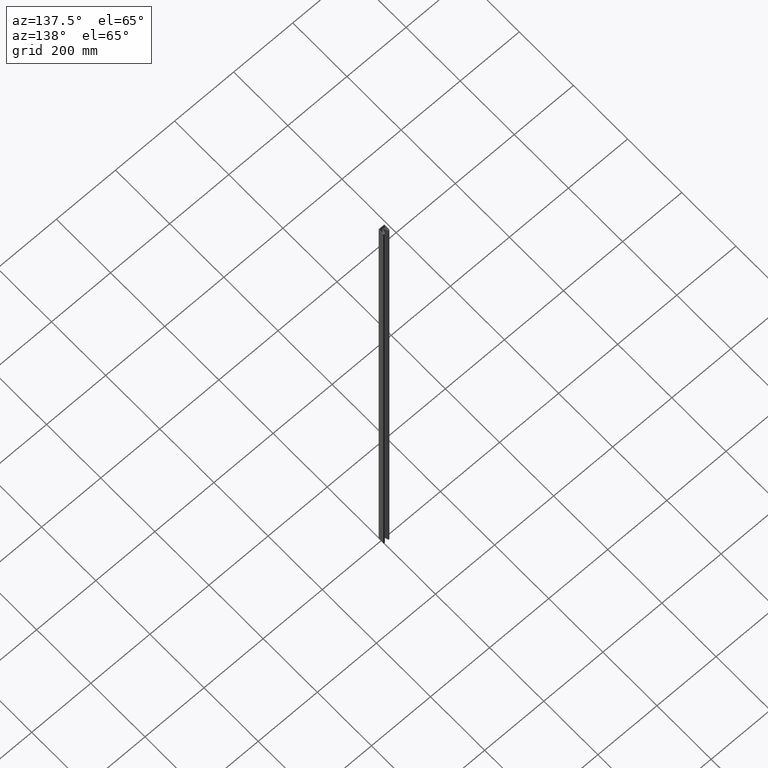
[diagram: clean part render]
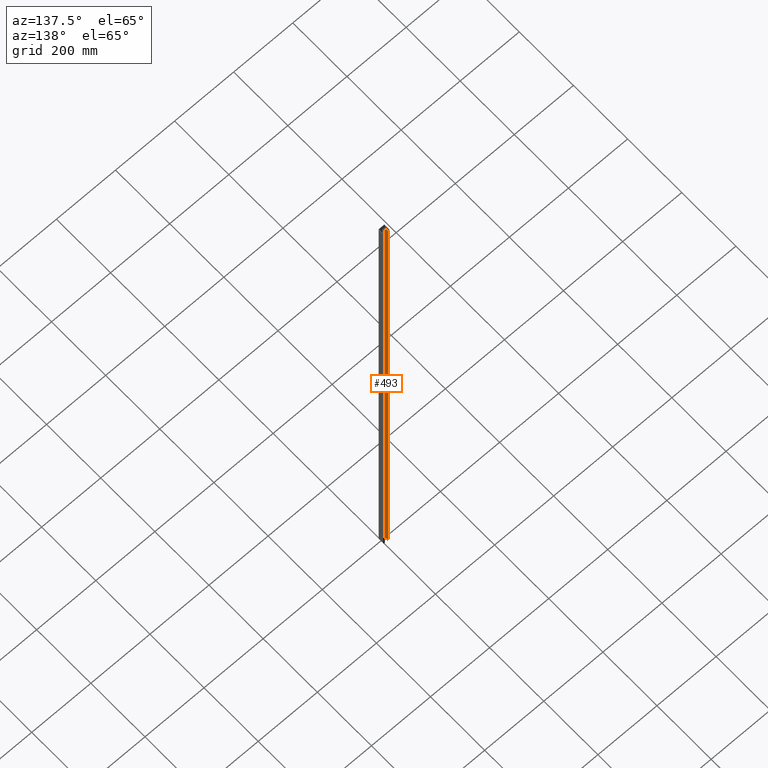
[diagram: same view with one face highlighted and labeled with its STEP entity id]
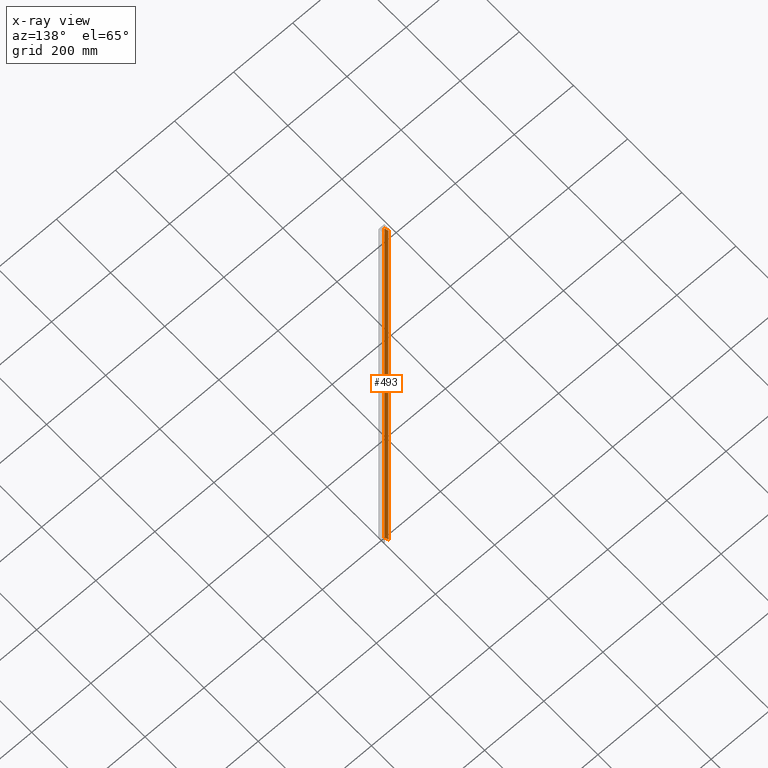
[diagram: x-ray of the same camera — body ghosted, the highlighted face saturated]
A machine part, auxiliary view. The second image highlights one B-rep face of the part: STEP entity #493.
The next image is the same camera in x-ray: the body ghosted, the highlighted face saturated — about 0% of this face is hidden behind the body in this view.
In plain terms, the highlighted planar face has unit normal (0.9511, 0.309, -0).
Its self-contained STEP definition (entity closure, byte-faithful):
#5 = LINE ( 'NONE', #513, #283 ) ;
#48 = CARTESIAN_POINT ( 'NONE',  ( -5.799999999999999822, 19.44721359549996720, -1825.000000000000000 ) ) ;
#49 = VECTOR ( 'NONE', #666, 1000.000000000000000 ) ;
#93 = CARTESIAN_POINT ( 'NONE',  ( -2.243034683953356367, 8.500000000000000000, 0.000000000000000000 ) ) ;
#94 = CARTESIAN_POINT ( 'NONE',  ( -5.799999999999999822, 19.44721359549996720, -1825.000000000000000 ) ) ;
#100 = EDGE_CURVE ( 'NONE', #997, #366, #635, .T. ) ;
#156 = VECTOR ( 'NONE', #642, 1000.000000000000000 ) ;
#218 = EDGE_CURVE ( 'NONE', #366, #571, #327, .T. ) ;
#237 = CARTESIAN_POINT ( 'NONE',  ( -5.799999999999999822, 19.44721359549996720, -1825.000000000000000 ) ) ;
#283 = VECTOR ( 'NONE', #965, 1000.000000000000000 ) ;
#285 = VECTOR ( 'NONE', #328, 1000.000000000000000 ) ;
#327 = LINE ( 'NONE', #237, #49 ) ;
#328 = DIRECTION ( 'NONE',  ( 0.000000000000000000, 0.000000000000000000, 1.000000000000000000 ) ) ;
#366 = VERTEX_POINT ( 'NONE', #94 ) ;
#386 = PLANE ( 'NONE',  #695 ) ;
#415 = EDGE_CURVE ( 'NONE', #1095, #571, #5, .T. ) ;
#493 = ADVANCED_FACE ( 'NONE', ( #628 ), #386, .T. ) ;
#513 = CARTESIAN_POINT ( 'NONE',  ( -5.799999999999999822, 19.44721359549996720, 0.000000000000000000 ) ) ;
#569 = DIRECTION ( 'NONE',  ( -0.3090169943749515036, 0.9510565162951523099, 0.000000000000000000 ) ) ;
#571 = VERTEX_POINT ( 'NONE', #723 ) ;
#604 = EDGE_LOOP ( 'NONE', ( #894, #614, #1066, #865 ) ) ;
#614 = ORIENTED_EDGE ( 'NONE', *, *, #781, .F. ) ;
#628 = FACE_OUTER_BOUND ( 'NONE', #604, .T. ) ;
#632 = LINE ( 'NONE', #839, #285 ) ;
#635 = LINE ( 'NONE', #806, #156 ) ;
#642 = DIRECTION ( 'NONE',  ( -0.3090169943749515036, 0.9510565162951523099, -0.000000000000000000 ) ) ;
#666 = DIRECTION ( 'NONE',  ( 0.000000000000000000, 0.000000000000000000, 1.000000000000000000 ) ) ;
#695 = AXIS2_PLACEMENT_3D ( 'NONE', #48, #990, #569 ) ;
#723 = CARTESIAN_POINT ( 'NONE',  ( -5.799999999999999822, 19.44721359549996720, 0.000000000000000000 ) ) ;
#781 = EDGE_CURVE ( 'NONE', #997, #1095, #632, .T. ) ;
#806 = CARTESIAN_POINT ( 'NONE',  ( -5.799999999999999822, 19.44721359549996720, -1825.000000000000000 ) ) ;
#839 = CARTESIAN_POINT ( 'NONE',  ( -2.243034683953356367, 8.500000000000000000, -1825.000000000000000 ) ) ;
#865 = ORIENTED_EDGE ( 'NONE', *, *, #218, .T. ) ;
#894 = ORIENTED_EDGE ( 'NONE', *, *, #415, .F. ) ;
#965 = DIRECTION ( 'NONE',  ( -0.3090169943749515036, 0.9510565162951523099, -0.000000000000000000 ) ) ;
#990 = DIRECTION ( 'NONE',  ( 0.9510565162951523099, 0.3090169943749515036, -0.000000000000000000 ) ) ;
#997 = VERTEX_POINT ( 'NONE', #1120 ) ;
#1066 = ORIENTED_EDGE ( 'NONE', *, *, #100, .T. ) ;
#1095 = VERTEX_POINT ( 'NONE', #93 ) ;
#1120 = CARTESIAN_POINT ( 'NONE',  ( -2.243034683953356367, 8.500000000000000000, -1825.000000000000000 ) ) ;